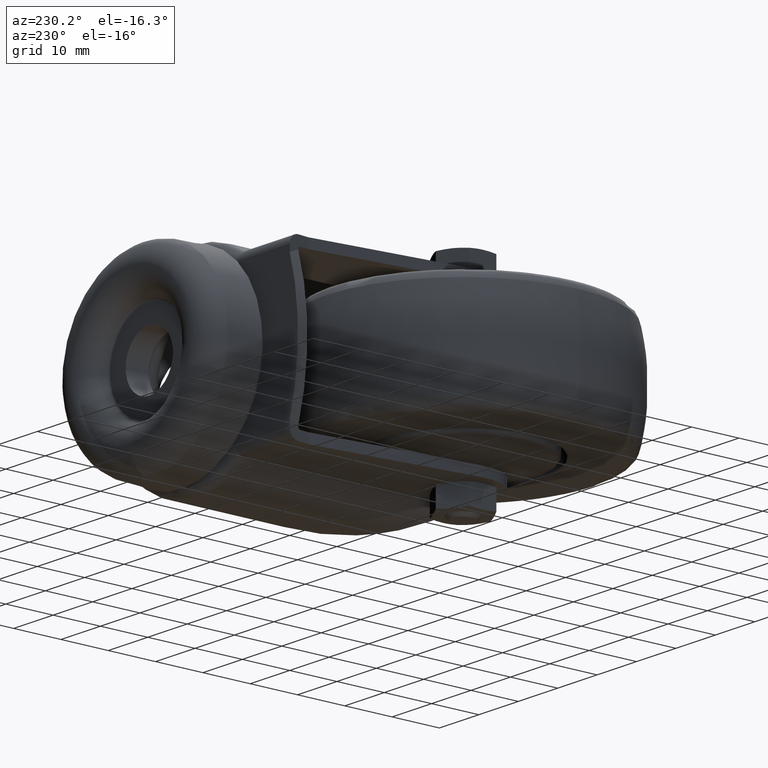
[diagram: clean part render]
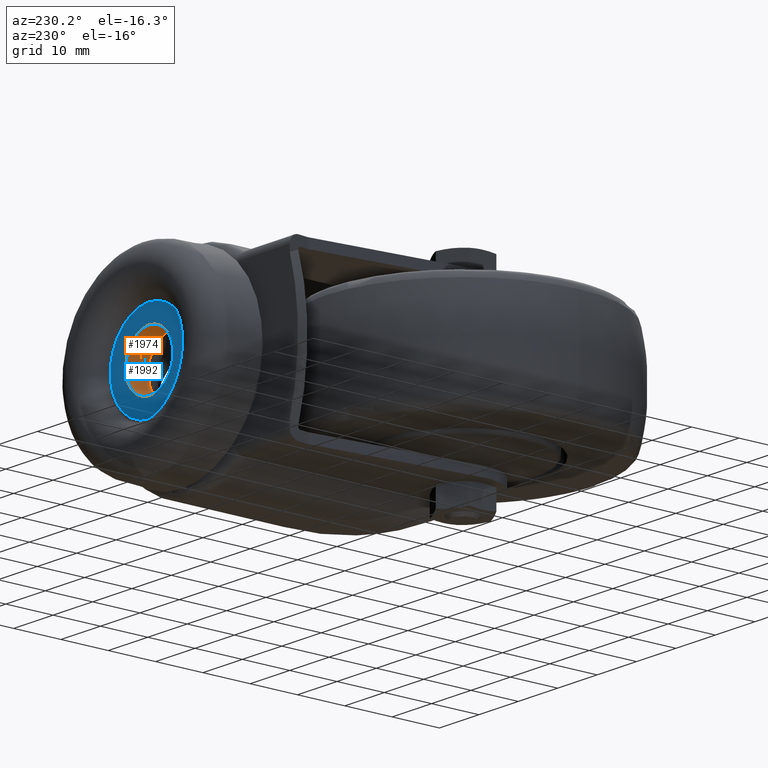
[diagram: same view with the hole feature highlighted: cylindrical wall and planar end face, labeled with their STEP entity ids]
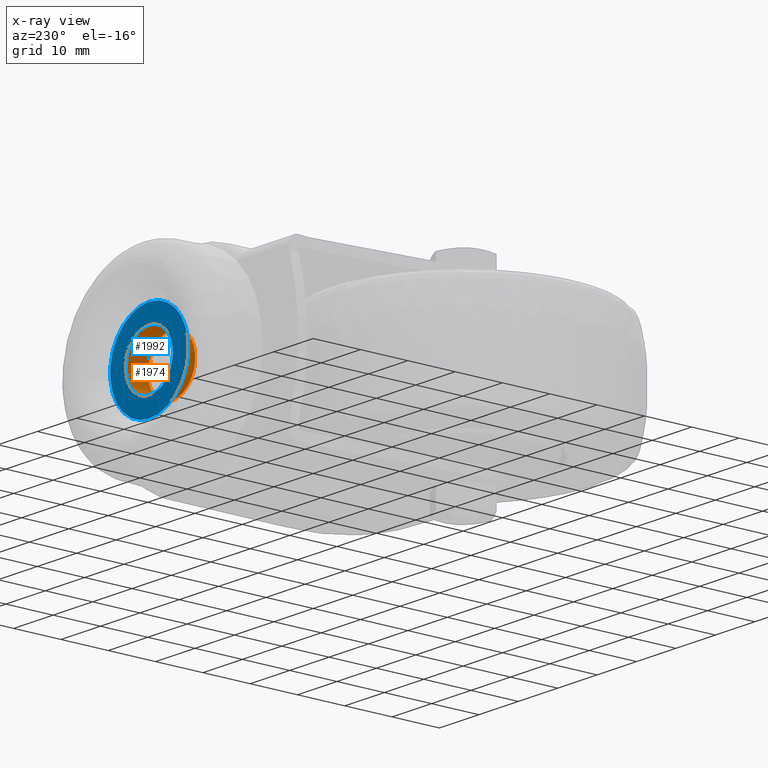
[diagram: x-ray of the same camera — body ghosted, the hole faces saturated]
A machine part, auxiliary view. The highlighted faces form one hole feature of diameter 12 mm: the cylindrical wall (entity #1974, orange) and its adjacent planar end face (entity #1992, blue) — they share a circular edge in the B-rep.
The next image is the same camera in x-ray (body ghosted, the hole faces saturated) — the bore reads through the body.
Wall:
#257=CYLINDRICAL_SURFACE('',#2183,6.);
#384=FACE_BOUND('',#656,.T.);
#479=FACE_OUTER_BOUND('',#655,.T.);
#655=EDGE_LOOP('',(#1519));
#656=EDGE_LOOP('',(#1520));
#852=CIRCLE('',#2184,6.);
#853=CIRCLE('',#2185,6.);
#1010=VERTEX_POINT('',#3409);
#1011=VERTEX_POINT('',#3411);
#1211=EDGE_CURVE('',#1010,#1010,#852,.T.);
#1212=EDGE_CURVE('',#1011,#1011,#853,.T.);
#1519=ORIENTED_EDGE('',*,*,#1211,.T.);
#1520=ORIENTED_EDGE('',*,*,#1212,.F.);
#1974=ADVANCED_FACE('',(#479,#384),#257,.F.);
#2183=AXIS2_PLACEMENT_3D('',#3408,#2599,#2600);
#2184=AXIS2_PLACEMENT_3D('',#3410,#2601,#2602);
#2185=AXIS2_PLACEMENT_3D('',#3412,#2603,#2604);
#2599=DIRECTION('center_axis',(0.,1.,0.));
#2600=DIRECTION('ref_axis',(0.,0.,-1.));
#2601=DIRECTION('center_axis',(0.,-1.,0.));
#2602=DIRECTION('ref_axis',(0.,0.,-1.));
#2603=DIRECTION('center_axis',(0.,-1.,0.));
#2604=DIRECTION('ref_axis',(0.,0.,-1.));
#3408=CARTESIAN_POINT('Origin',(21.,46.47,0.));
#3409=CARTESIAN_POINT('',(21.,44.1,-6.));
#3410=CARTESIAN_POINT('Origin',(21.,44.1,0.));
#3411=CARTESIAN_POINT('',(21.,48.84,-6.));
#3412=CARTESIAN_POINT('Origin',(21.,48.84,0.));
End face:
#301=PLANE('',#2213);
#391=FACE_BOUND('',#681,.T.);
#497=FACE_OUTER_BOUND('',#680,.T.);
#680=EDGE_LOOP('',(#1603));
#681=EDGE_LOOP('',(#1604));
#853=CIRCLE('',#2185,6.);
#863=CIRCLE('',#2214,9.8957334149857);
#1011=VERTEX_POINT('',#3411);
#1024=VERTEX_POINT('',#3491);
#1212=EDGE_CURVE('',#1011,#1011,#853,.T.);
#1238=EDGE_CURVE('',#1024,#1024,#863,.T.);
#1603=ORIENTED_EDGE('',*,*,#1238,.F.);
#1604=ORIENTED_EDGE('',*,*,#1212,.T.);
#1992=ADVANCED_FACE('',(#497,#391),#301,.T.);
#2185=AXIS2_PLACEMENT_3D('',#3412,#2603,#2604);
#2213=AXIS2_PLACEMENT_3D('',#3490,#2673,#2674);
#2214=AXIS2_PLACEMENT_3D('',#3492,#2675,#2676);
#2603=DIRECTION('center_axis',(0.,-1.,0.));
#2604=DIRECTION('ref_axis',(0.,0.,-1.));
#2673=DIRECTION('center_axis',(0.,1.,0.));
#2674=DIRECTION('ref_axis',(0.,0.,1.));
#2675=DIRECTION('center_axis',(0.,-1.,0.));
#2676=DIRECTION('ref_axis',(0.,0.,-1.));
#3411=CARTESIAN_POINT('',(21.,48.84,-6.));
#3412=CARTESIAN_POINT('Origin',(21.,48.84,0.));
#3490=CARTESIAN_POINT('Origin',(30.8957334149857,48.84,0.));
#3491=CARTESIAN_POINT('',(21.,48.84,-9.8957334149857));
#3492=CARTESIAN_POINT('Origin',(21.,48.84,0.));